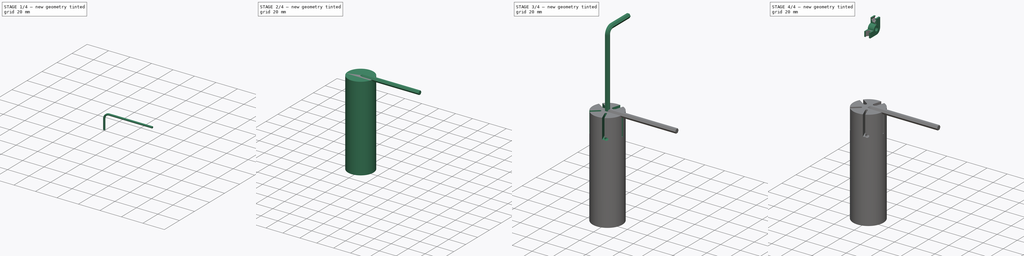
[diagram: build sequence overview — one tinted view per stage of 4, left to right]
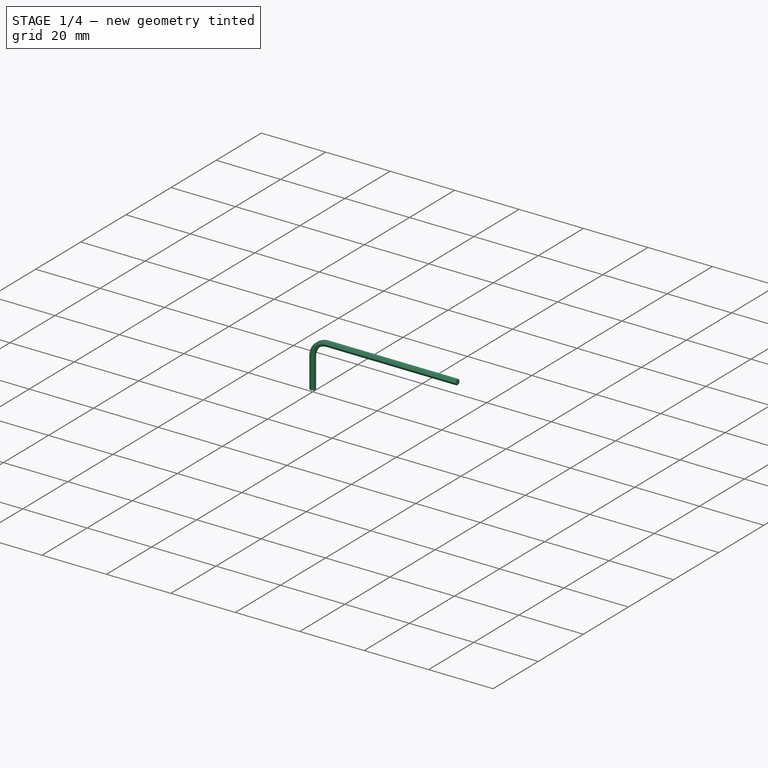
[diagram: stage 1 of 4 — iso view after this stage's code; geometry added in this stage tinted green]
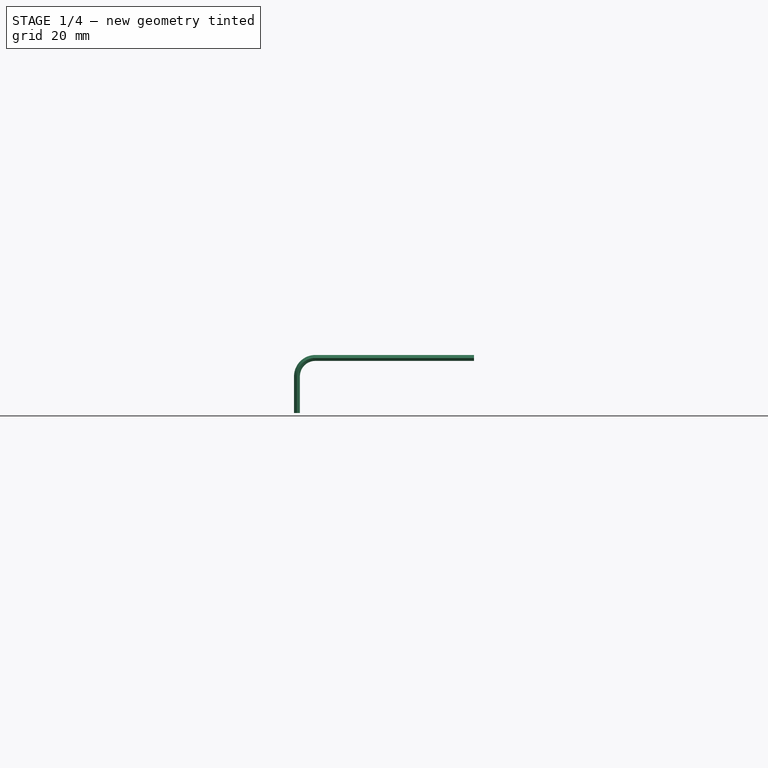
[diagram: stage 1 of 4 — front view after this stage's code; geometry added in this stage tinted green]
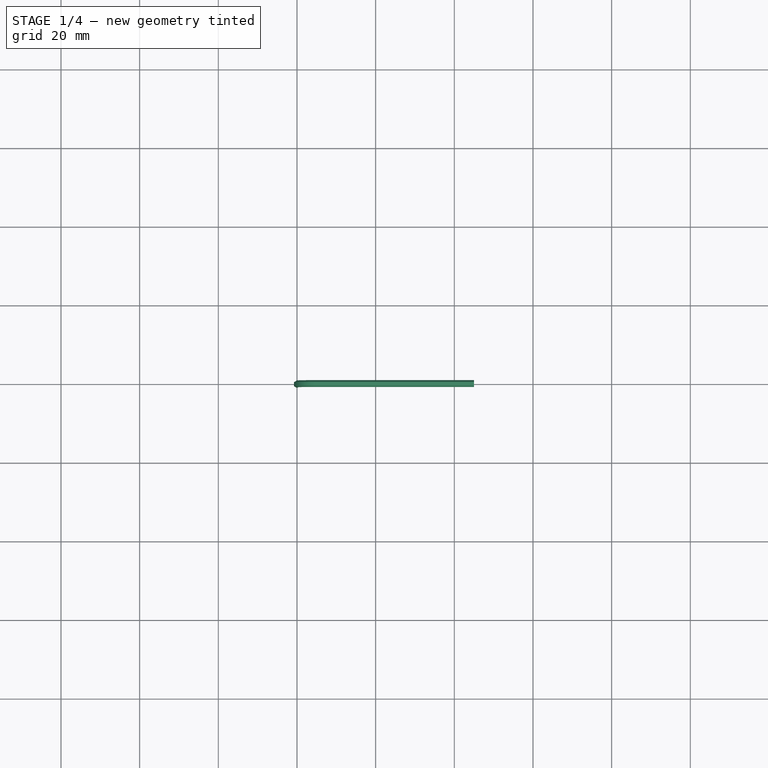
[diagram: stage 1 of 4 — top view after this stage's code; geometry added in this stage tinted green]
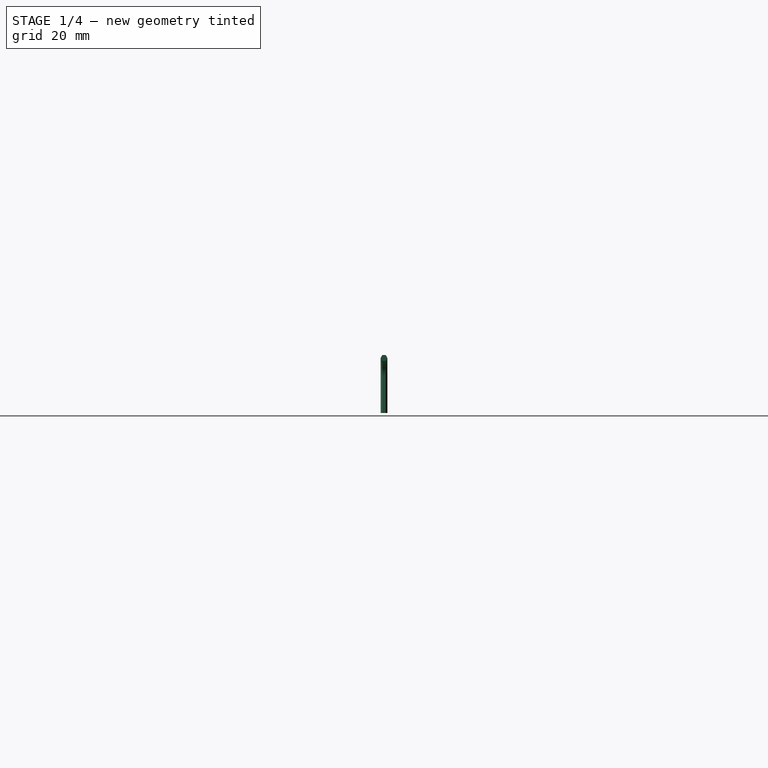
[diagram: stage 1 of 4 — right view after this stage's code; geometry added in this stage tinted green]
FCSTD DOCUMENT  (FreeCAD 1.1R20260108 (Git shallow))
Label: Hex Keys Holder
License: Creative Commons Attribution-NonCommercial-ShareAlike 4.0
LicenseURL: https://creativecommons.org/licenses/by-nc-sa/4.0/
objects: App::Point×9, Sketcher::SketchObject×9, PartDesign::Body×9, PartDesign::SubShapeBinder×5, PartDesign::FeatureBase×3, PartDesign::AdditivePipe×2, PartDesign::Pad×2, Part::DatumPlane×2, PartDesign::Pocket×2, PartDesign::SubtractivePipe×1, Spreadsheet::Sheet×1
note: 59 computed .brp shape members not serialized (recipe doc carries the construction recipe); baked Part::Feature solids carry a one-line shape summary decoded from their .brp

FEATURE [PartDesign::Body] Body  label="Corps"
  AllowCompound = true
  Group = -> [Sketch005,Sketch006,Pad002,Pocket,Sketch007,DatumPlane,Sketch,Pocket001]
  Origin = -> Origin
  Tip = -> Pocket001
FEATURE [PartDesign::Body] Body003  label="Corps001"
  AllowCompound = true
  Origin = -> Origin006
FEATURE [App::Point] Origin007  label="Origine006"
  Role = Origin
FEATURE [Spreadsheet::Sheet] Spreadsheet
  cells = B3='S (Section); C3='L1 (Long length); D3='L2 (Short Length); A4==hiddenref(Body004.Size.String); B4(Section)==.B5; C4(Long_Length)==.C5; D4(Short_Length)==.D5; A5='M1.5; B5=1.5; C5=45; D5=14; A6='M2; B6=2; C6=50; D6=16; A7='M2.5; B7=2.5; C7=50; D7=18; A8='M3; B8=3; C8=63; D8=20; A9='M4; B9=4; C9=70; D9=25
  expr: .cells.Bind.B4.D4 = tuple(.cells; <<B>> + str(hiddenref(Body004.Size) + 5); <<D>> + str(hiddenref(Body004.Size) + 5))
FEATURE [App::Point] Origin009  label="Origine008"
  Role = Origin
FEATURE [Sketcher::SketchObject] Sketch008  label="Path"
  ArcFitTolerance = 1e-06
  AttachmentSupport = -> [Origin008]
  ExternalTypes = [0]
  FullyConstrained = true
  MakeInternals = false
  MapMode = 5
  Placement = pos=(0,0,0) rot=(1,0,0;1.5708rad)
  expr: Constraints[4] = <<Spreadsheet>>.Long_Length
  expr: Constraints[5] = <<Spreadsheet>>.Short_Length
  sketch-geometry (5):
    g0: LineSegment [constr] StartX=0 StartY=0 StartZ=0 EndX=45 EndY=0 EndZ=0
    g1: LineSegment [constr] StartX=0 StartY=0 StartZ=0 EndX=0 EndY=-14 EndZ=0
    g2: ArcOfCircle CenterX=4.66667 CenterY=-4.66667 CenterZ=0 NormalX=0 NormalY=0 NormalZ=1 AngleXU=0 Radius=4.66667 StartAngle=1.5708 EndAngle=3.14159
    g3: LineSegment StartX=4.66667 StartY=0 StartZ=0 EndX=45 EndY=0 EndZ=0
    g4: LineSegment StartX=0 StartY=-4.66667 StartZ=0 EndX=0 EndY=-14 EndZ=0
  constraints (13):
    c: Coincident(g0,g-1)
    c: PointOnObject(g0,g-1)
    c: Coincident(g1,g0)
    c: Vertical(g1)
    c: DistanceX(g0,g0) = 45
    c: Distance(g1,g1) = 14
    c: PointOnObject(g2,g1)
    c: PointOnObject(g2,g0)
    c: Radius(g2) = 4.66667
    c: Coincident(g3,g0)
    c: Coincident(g4,g1)
    c: Tangent(g4,g2) = -1.5708
    c: Tangent(g3,g2) = 1.5708
FEATURE [Part::DatumPlane] DatumPlane001
  AttachmentSupport = -> [Sketch008]
  MapMode = 7
  Placement = pos=(45,0,0) rot=(0.57735,-0.57735,-0.57735;2.0944rad)
FEATURE [Sketcher::SketchObject] Sketch009  label="Section"
  ArcFitTolerance = 1e-06
  AttachmentSupport = -> [DatumPlane001]
  ExternalTypes = [0]
  FullyConstrained = true
  MakeInternals = false
  MapMode = 5
  Placement = pos=(45,0,0) rot=(0.57735,-0.57735,-0.57735;2.0944rad)
  expr: Constraints[19] = <<Spreadsheet>>.Section
  sketch-geometry (7):
    g0: LineSegment StartX=0.433013 StartY=0.75 StartZ=0 EndX=-0.433013 EndY=0.75 EndZ=0
    g1: LineSegment StartX=-0.433013 StartY=0.75 StartZ=0 EndX=-0.866025 EndY=-2.1e-15 EndZ=0
    g2: LineSegment StartX=-0.866025 StartY=-2.1e-15 StartZ=0 EndX=-0.433013 EndY=-0.75 EndZ=0
    g3: LineSegment StartX=-0.433013 StartY=-0.75 StartZ=0 EndX=0.433013 EndY=-0.75 EndZ=0
    g4: LineSegment StartX=0.433013 StartY=-0.75 StartZ=0 EndX=0.866025 EndY=9e-16 EndZ=0
    g5: LineSegment StartX=0.866025 StartY=9e-16 StartZ=0 EndX=0.433013 EndY=0.75 EndZ=0
    g6: Circle [constr] CenterX=0 CenterY=0 CenterZ=0 NormalX=0 NormalY=0 NormalZ=1 AngleXU=0 Radius=0.866025
  constraints (16):
    c: Coincident(g0,g1)
    c: Coincident(g1,g2)
    c: Coincident(g2,g3)
    c: Coincident(g3,g4)
    c: Coincident(g4,g5)
    c: Coincident(g5,g0)
    c: Equal(g0, g1-g5) x5
    c: PointOnObject(g0,g6)
    c: PointOnObject(g1,g6)
    c: PointOnObject(g2,g6)
    c: PointOnObject(g3,g6)
    c: PointOnObject(g4,g6)
    c: PointOnObject(g5,g6)
    c: Coincident(g6,g-1)
    c: Horizontal(g0)
    c: Distance(g3,g0) = 1.5
FEATURE [PartDesign::AdditivePipe] AdditivePipe001
  AuxiliaryCurvilinear = true
  AuxiliarySpineTangent = false
  Binormal = (0,0,0)
  Mode = 0
  Placement = pos=(45,0,0) rot=(0.57735,-0.57735,-0.57735;2.0944rad)
  Profile = -> Sketch009
  Refine = true
  Spine = -> Sketch008
  SpineTangent = false
  Suppressed = false
  Transformation = 0
  Transition = 0
FEATURE [PartDesign::Body] Body006  label="M2"
  AllowCompound = true
  BaseFeature = -> Binder002
  Group = -> [BaseFeature001,Binder002]
  Origin = -> Origin012
  Tip = -> BaseFeature001
FEATURE [PartDesign::FeatureBase] BaseFeature002
  BaseFeature = -> Binder001
  Suppressed = false
FEATURE [PartDesign::Body] Body005  label="M1.5"
  AllowCompound = true
  BaseFeature = -> Binder001
  Group = -> [BaseFeature002,Binder001]
  Origin = -> Origin010
  Tip = -> BaseFeature002
FEATURE [App::Point] Origin017  label="Origine016"
  Role = Origin
FEATURE [PartDesign::SubShapeBinder] Binder004
  BindCopyOnChange = 0
  BindMode = 0
  ClaimChildren = false
  Context = -> Body008 [Binder004.]
  Fuse = false
  MakeFace = true
  OffsetFill = false
  OffsetIntersection = false
  OffsetJoinType = 0
  OffsetOpenResult = false
  PartialLoad = false
  Refine = true
  Relative = true
  Support = -> [Body004]
  _Version = 2
FEATURE [PartDesign::Body] Body008  label="Axis"
  AllowCompound = true
  Group = -> [Binder004]
  Origin = -> Origin016
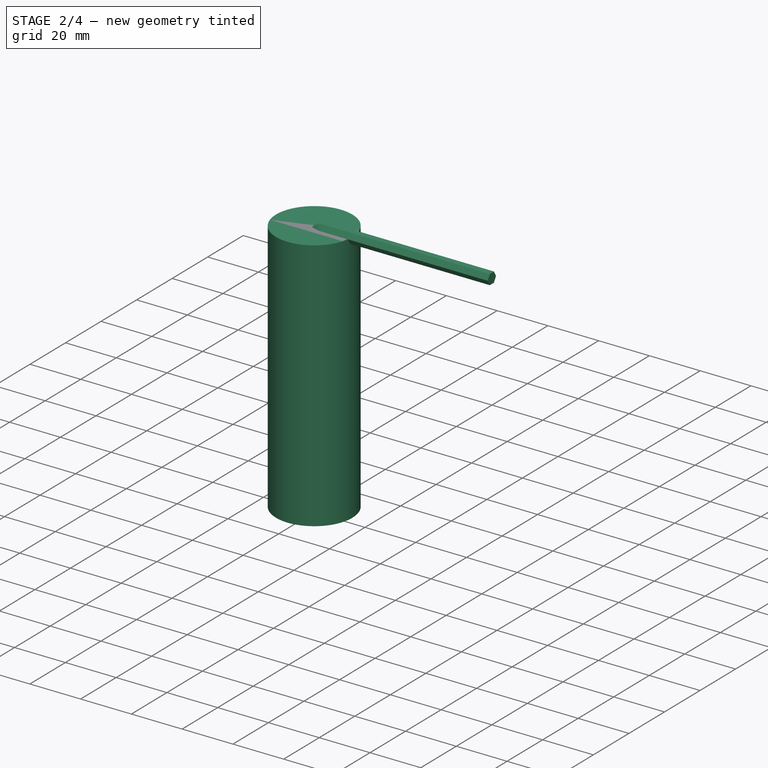
[diagram: stage 2 of 4 — iso view after this stage's code; geometry added in this stage tinted green]
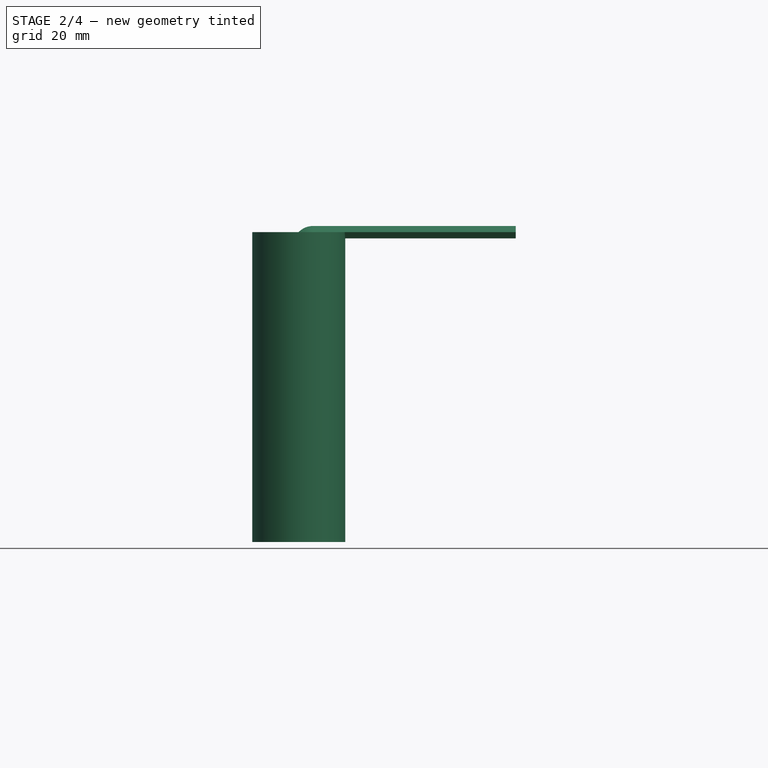
[diagram: stage 2 of 4 — front view after this stage's code; geometry added in this stage tinted green]
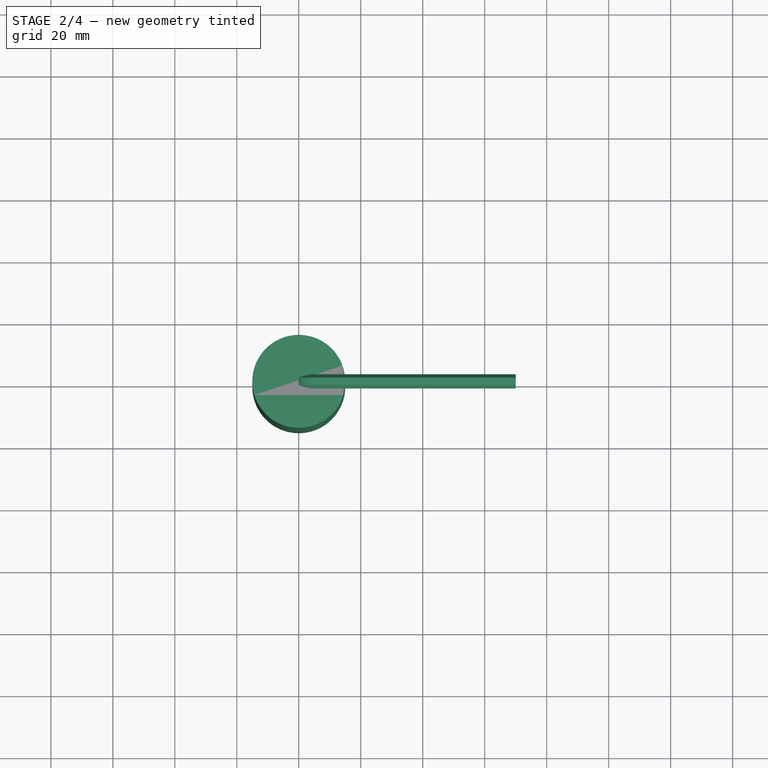
[diagram: stage 2 of 4 — top view after this stage's code; geometry added in this stage tinted green]
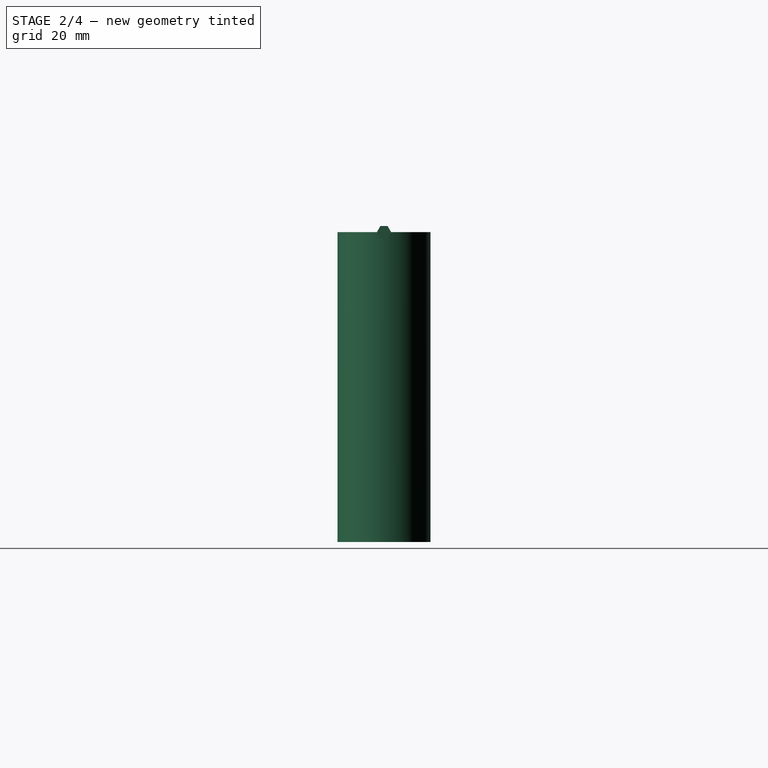
[diagram: stage 2 of 4 — right view after this stage's code; geometry added in this stage tinted green]
FEATURE [PartDesign::Body] Body002  label="4 Key Holder"
  AllowCompound = true
  Group = -> [Binder,Sketch004,Pad001,SubtractivePipe]
  Origin = -> Origin004
  Placement = pos=(0,-5.481,150.37) rot=(1,0,0;3.14159rad)
  Tip = -> SubtractivePipe
FEATURE [Sketcher::SketchObject] Sketch005  label="Master"
  ArcFitTolerance = 1e-06
  AttachmentSupport = -> [Origin]
  ExternalTypes = [0]
  FullyConstrained = true
  MakeInternals = false
  MapMode = 5
  sketch-geometry (64):
    g0: LineSegment [constr] StartX=3.99641 StartY=6.08512 StartZ=0 EndX=3.5584 EndY=8.03657 EndZ=0
    g1: LineSegment [constr] StartX=3.5584 StartY=8.03657 StartZ=0 EndX=1.6494 EndY=8.63297 EndZ=0
    g2: LineSegment [constr] StartX=1.6494 StartY=8.63297 StartZ=0 EndX=0.178394 EndY=7.27792 EndZ=0
    g3: LineSegment [constr] StartX=0.178394 StartY=7.27792 StartZ=0 EndX=0.6164 EndY=5.32648 EndZ=0
    g4: LineSegment [constr] StartX=0.6164 StartY=5.32648 StartZ=0 EndX=2.52541 EndY=4.73008 EndZ=0
    g5: LineSegment [constr] StartX=2.52541 StartY=4.73008 StartZ=0 EndX=3.99641 EndY=6.08512 EndZ=0
    g6: Circle [constr] CenterX=2.0874 CenterY=6.68152 CenterZ=0 NormalX=0 NormalY=0 NormalZ=1 AngleXU=0 Radius=2
    g7: LineSegment [constr] StartX=0 StartY=-9e-16 StartZ=0 EndX=2.0874 EndY=6.68152 EndZ=0
    g8: LineSegment StartX=0.178394 StartY=7.27792 StartZ=0 EndX=0.6164 EndY=5.32648 EndZ=0
    g9: LineSegment StartX=0.6164 StartY=5.32648 StartZ=0 EndX=2.52541 EndY=4.73008 EndZ=0
    g10: LineSegment StartX=2.52541 StartY=4.73008 StartZ=0 EndX=3.99641 EndY=6.08512 EndZ=0
    g11: LineSegment [constr] StartX=-6.13722 StartY=4.87053 StartZ=0 EndX=-6.95292 EndY=3.61171 EndZ=0
    g12: LineSegment [constr] StartX=-6.95292 StartY=3.61171 StartZ=0 EndX=-6.2706 EndY=2.27588 EndZ=0
    g13: LineSegment StartX=-6.2706 StartY=2.27588 StartZ=0 EndX=-4.77257 EndY=2.19887 EndZ=0
    g14: LineSegment StartX=-4.77257 StartY=2.19887 StartZ=0 EndX=-3.95687 EndY=3.4577 EndZ=0
    g15: LineSegment StartX=-3.95687 StartY=3.4577 StartZ=0 EndX=-4.63919 EndY=4.79352 EndZ=0
    g16: LineSegment [constr] StartX=-4.63919 StartY=4.79352 StartZ=0 EndX=-6.13722 EndY=4.87053 EndZ=0
    g17: Circle [constr] CenterX=-5.45489 CenterY=3.5347 CenterZ=0 NormalX=0 NormalY=0 NormalZ=1 AngleXU=0 Radius=1.5
    g18: LineSegment [constr] StartX=-5.56837 StartY=-3.10132 StartZ=0 EndX=-5.98716 EndY=-4.27908 EndZ=0
    g19: LineSegment [constr] StartX=-5.98716 StartY=-4.27908 StartZ=0 EndX=-5.17659 EndY=-5.23064 EndZ=0
    g20: LineSegment [constr] StartX=-5.17659 StartY=-5.23064 StartZ=0 EndX=-3.94722 EndY=-5.00444 EndZ=0
    g21: LineSegment StartX=-3.94722 StartY=-5.00444 StartZ=0 EndX=-3.52844 EndY=-3.82668 EndZ=0
    g22: LineSegment StartX=-3.52844 StartY=-3.82668 StartZ=0 EndX=-4.33901 EndY=-2.87512 EndZ=0
    g23: LineSegment StartX=-4.33901 StartY=-2.87512 StartZ=0 EndX=-5.56837 EndY=-3.10132 EndZ=0
    g24: Circle [constr] CenterX=-4.7578 CenterY=-4.05288 CenterZ=0 NormalX=0 NormalY=0 NormalZ=1 AngleXU=0 Radius=1.25
    g25: LineSegment [constr] StartX=1.26448 StartY=-5.94988 StartZ=0 EndX=2.04665 EndY=-6.57294 EndZ=0
    g26: LineSegment [constr] StartX=2.04665 StartY=-6.57294 StartZ=0 EndX=2.97732 EndY=-6.20708 EndZ=0
    g27: LineSegment [constr] StartX=2.97732 StartY=-6.20708 StartZ=0 EndX=3.12582 EndY=-5.21817 EndZ=0
    g28: LineSegment StartX=3.12582 StartY=-5.21817 StartZ=0 EndX=2.34364 EndY=-4.59511 EndZ=0
    g29: LineSegment StartX=2.34364 StartY=-4.59511 StartZ=0 EndX=1.41297 EndY=-4.96097 EndZ=0
    g30: LineSegment StartX=1.41297 StartY=-4.96097 StartZ=0 EndX=1.26448 EndY=-5.94988 EndZ=0
    g31: Circle [constr] CenterX=2.19515 CenterY=-5.58402 CenterZ=0 NormalX=0 NormalY=0 NormalZ=1 AngleXU=0 Radius=1
    g32: LineSegment [constr] StartX=-5.45489 StartY=3.5347 StartZ=0 EndX=0 EndY=-9e-16 EndZ=0
    g33: LineSegment [constr] StartX=-4.7578 StartY=-4.05288 StartZ=0 EndX=0 EndY=-9e-16 EndZ=0
    g34: LineSegment [constr] StartX=2.19515 StartY=-5.58402 StartZ=0 EndX=0 EndY=-9e-16 EndZ=0
    g35: LineSegment StartX=5.10048 StartY=0.375 StartZ=0 EndX=5.10048 EndY=-0.375 EndZ=0
    g36: LineSegment StartX=5.10048 StartY=-0.375 StartZ=0 EndX=5.75 EndY=-0.75 EndZ=0
    g37: LineSegment [constr] StartX=5.75 StartY=-0.75 StartZ=0 EndX=6.39952 EndY=-0.375 EndZ=0
    g38: LineSegment [constr] StartX=6.39952 StartY=-0.375 StartZ=0 EndX=6.39952 EndY=0.375 EndZ=0
    g39: LineSegment [constr] StartX=6.39952 StartY=0.375 StartZ=0 EndX=5.75 EndY=0.75 EndZ=0
    g40: LineSegment StartX=5.75 StartY=0.75 StartZ=0 EndX=5.10048 EndY=0.375 EndZ=0
    g41: Circle [constr] CenterX=5.75 CenterY=-9e-16 CenterZ=0 NormalX=0 NormalY=0 NormalZ=1 AngleXU=0 Radius=0.75
    g42: LineSegment [constr] StartX=0 StartY=-9e-16 StartZ=0 EndX=5.75 EndY=-9e-16 EndZ=0
    g43: ArcOfCircle CenterX=0 CenterY=-9e-16 CenterZ=0 NormalX=0 NormalY=0 NormalZ=1 AngleXU=0 Radius=15 StartAngle=2.46647 EndAngle=2.6668
    g44: Circle [constr] CenterX=0 CenterY=-9e-16 CenterZ=0 NormalX=0 NormalY=0 NormalZ=1 AngleXU=0 Radius=5
    g45: LineSegment [constr] StartX=3.04877 StartY=4.92774 StartZ=0 EndX=5.38949 EndY=0.65767 EndZ=0
    g46: LineSegment [constr] StartX=5.34723 StartY=-0.632675 StartZ=0 EndX=2.73217 EndY=-4.74046 EndZ=0
    g47: LineSegment [constr] StartX=1.21855 StartY=-5.36896 StartZ=0 EndX=-3.53705 EndY=-4.32171 EndZ=0
    g48: LineSegment [constr] StartX=-4.87216 StartY=-2.80812 StartZ=0 EndX=-5.31766 EndY=2.04099 EndZ=0
    g49: LineSegment [constr] StartX=-4.25246 StartY=4.03639 StartZ=0 EndX=0.241612 EndY=5.91142 EndZ=0
    g50: LineSegment StartX=0.178394 StartY=7.27792 StartZ=0 EndX=2.52406 EndY=14.7861 EndZ=0
    g51: LineSegment StartX=3.99641 StartY=6.08512 StartZ=0 EndX=6.34207 EndY=13.5933 EndZ=0
    g52: LineSegment StartX=-4.63919 StartY=4.79352 StartZ=0 EndX=-11.7094 EndY=9.37494 EndZ=0
    g53: LineSegment StartX=-6.2706 StartY=2.27588 StartZ=0 EndX=-13.3408 EndY=6.8573 EndZ=0
    g54: LineSegment StartX=-5.56837 StartY=-3.10132 StartZ=0 EndX=-12.1896 EndY=-8.74152 EndZ=0
    g55: LineSegment StartX=-3.94722 StartY=-5.00444 StartZ=0 EndX=-10.5684 EndY=-10.6446 EndZ=0
    g56: LineSegment StartX=1.26448 StartY=-5.94988 StartZ=0 EndX=4.54499 EndY=-14.2949 EndZ=0
    g57: LineSegment StartX=3.12582 StartY=-5.21817 StartZ=0 EndX=6.40633 EndY=-13.5631 EndZ=0
    g58: LineSegment StartX=5.75 StartY=-0.75 StartZ=0 EndX=14.9812 EndY=-0.75 EndZ=0
    g59: LineSegment StartX=5.75 StartY=0.75 StartZ=0 EndX=14.9812 EndY=0.75 EndZ=0
    g60: ArcOfCircle CenterX=0 CenterY=-9e-16 CenterZ=0 NormalX=0 NormalY=0 NormalZ=1 AngleXU=0 Radius=15 StartAngle=1.13426 EndAngle=1.40172
    g61: ArcOfCircle CenterX=0 CenterY=-9e-16 CenterZ=0 NormalX=0 NormalY=0 NormalZ=1 AngleXU=0 Radius=15 StartAngle=6.23316 EndAngle=6.33321
    g62: ArcOfCircle CenterX=0 CenterY=-9e-16 CenterZ=0 NormalX=0 NormalY=0 NormalZ=1 AngleXU=0 Radius=15 StartAngle=5.02023 EndAngle=5.15366
    g63: ArcOfCircle CenterX=0 CenterY=-9e-16 CenterZ=0 NormalX=0 NormalY=0 NormalZ=1 AngleXU=0 Radius=15 StartAngle=3.76372 EndAngle=3.93058
  constraints (163):
    c: Coincident(g0,g1)
    c: Coincident(g1,g2)
    c: Coincident(g2,g3)
    c: Coincident(g3,g4)
    c: Coincident(g4,g5)
    c: Coincident(g5,g0)
    c: Equal(g0, g1-g5) x5
    c: PointOnObject(g0,g6)
    c: PointOnObject(g1,g6)
    c: PointOnObject(g2,g6)
    c: PointOnObject(g3,g6)
    c: PointOnObject(g4,g6)
    c: PointOnObject(g5,g6)
    c: Coincident(g7,g-1)
    c: Coincident(g7,g6)
    c: Perpendicular(g7,g4)
    c: Diameter(g6) = 4
    c: Coincident(g2,g8)
    c: Coincident(g8,g3)
    c: Coincident(g8,g9)
    c: Coincident(g9,g4)
    c: Coincident(g9,g10)
    c: Coincident(g10,g0)
    c: Coincident(g11,g12)
    c: Coincident(g12,g13)
    c: Coincident(g13,g14)
    c: Coincident(g14,g15)
    c: Coincident(g15,g16)
    c: Coincident(g16,g11)
    c: Equal(g11, g12-g16) x5
    c: PointOnObject(g11,g17)
    c: PointOnObject(g12,g17)
    c: PointOnObject(g13,g17)
    c: PointOnObject(g14,g17)
    c: PointOnObject(g15,g17)
    c: PointOnObject(g16,g17)
    c: Coincident(g18,g19)
    c: Coincident(g19,g20)
    c: Coincident(g20,g21)
    c: Coincident(g21,g22)
    c: Coincident(g22,g23)
    c: Coincident(g23,g18)
    c: Equal(g18, g19-g23) x5
    c: PointOnObject(g18,g24)
    c: PointOnObject(g19,g24)
    c: PointOnObject(g20,g24)
    c: PointOnObject(g21,g24)
    c: PointOnObject(g22,g24)
    c: PointOnObject(g23,g24)
    c: Coincident(g25,g26)
    c: Coincident(g26,g27)
    c: Coincident(g27,g28)
    c: Coincident(g28,g29)
    c: Coincident(g29,g30)
    c: Coincident(g30,g25)
    c: Equal(g25, g26-g30) x5
    c: PointOnObject(g25,g31)
    c: PointOnObject(g26,g31)
    c: PointOnObject(g27,g31)
    c: PointOnObject(g28,g31)
    c: PointOnObject(g29,g31)
    c: Diameter(g17) = 3
    c: Diameter(g24) = 2.5
    c: Diameter(g31) = 2
    c: Coincident(g32,g17)
    c: Coincident(g32,g7)
    c: Coincident(g33,g24)
    c: Coincident(g33,g7)
    c: Coincident(g34,g31)
    c: Coincident(g34,g7)
    c: Perpendicular(g32,g14)
    c: Perpendicular(g33,g22)
    c: Perpendicular(g34,g29)
    c: Coincident(g35,g36)
    c: Coincident(g36,g37)
    c: Coincident(g37,g38)
    c: Coincident(g38,g39)
    c: Coincident(g39,g40)
    c: Coincident(g40,g35)
    c: Equal(g35, g36-g40) x5
    c: PointOnObject(g35,g41)
    c: PointOnObject(g36,g41)
    c: PointOnObject(g37,g41)
    c: PointOnObject(g38,g41)
    c: PointOnObject(g39,g41)
    c: Diameter(g41) = 1.5
    c: Coincident(g42,g7)
    c: Coincident(g42,g41)
    c: Perpendicular(g35,g42)
    c: PointOnObject(g25,g31)
    c: PointOnObject(g35,g41)
    c: Coincident(g43,g7)
    c: Diameter(g44) = 10
    c: Coincident(g44,g7)
    c: Tangent(g41,g44)
    c: Tangent(g31,g44)
    c: Tangent(g24,g44)
    c: Tangent(g17,g44)
    c: Tangent(g6,g44)
    c: Horizontal(g42)
    c: PointOnObject(g45,g41)
    c: PointOnObject(g46,g31)
    c: PointOnObject(g47,g31)
    c: PointOnObject(g47,g24)
    c: PointOnObject(g48,g24)
    c: PointOnObject(g48,g17)
    c: PointOnObject(g49,g15)
    c: PointOnObject(g49,g6)
    c: PointOnObject(g6,g49)
    c: PointOnObject(g17,g49)
    c: PointOnObject(g46,g41)
    c: PointOnObject(g41,g46)
    c: PointOnObject(g41,g45)
    c: PointOnObject(g45,g6)
    c: PointOnObject(g6,g45)
    c: Equal(g45,g49)
    c: Equal(g49,g48)
    c: Equal(g48,g47)
    c: PointOnObject(g17,g48)
    c: PointOnObject(g24,g48)
    c: PointOnObject(g24,g47)
    c: PointOnObject(g31,g47)
    c: PointOnObject(g31,g46)
    c: Equal(g46,g45)
    c: Coincident(g50,g2)
    c: Tangent(g50,g6)
    c: Coincident(g51,g0)
    c: Parallel(g51,g7)
    c: Coincident(g52,g15)
    c: Coincident(g53,g12)
    c: Coincident(g54,g18)
    c: Coincident(g55,g20)
    c: Tangent(g55,g24)
    c: Coincident(g56,g25)
    c: Tangent(g56,g31)
    c: Coincident(g57,g27)
    c: Coincident(g58,g36)
    c: Coincident(g59,g39)
    c: Parallel(g57,g56)
    c: Parallel(g55,g54)
    c: Parallel(g32,g53)
    c: Parallel(g53,g52)
    c: Parallel(g58,g59)
    c: Parallel(g59,g42)
    c: Coincident(g50,g60)
    c: Coincident(g52,g43)
    c: Coincident(g51,g60)
    c: Coincident(g59,g61)
    c: Coincident(g43,g60)
    c: Coincident(g57,g62)
    c: Coincident(g58,g61)
    c: Coincident(g43,g61)
    c: Coincident(g55,g63)
    c: Coincident(g56,g62)
    c: Coincident(g43,g62)
    c: Diameter(g43) = 30
    c: Coincident(g53,g43)
    c: Coincident(g54,g63)
    c: Coincident(g43,g63)
    c: PointOnObject(g59,g60)
    c: PointOnObject(g57,g60)
    c: PointOnObject(g55,g60)
    c: PointOnObject(g43,g60)
FEATURE [Sketcher::SketchObject] Sketch007
  ArcFitTolerance = 1e-06
  AttachmentSupport = -> [Origin]
  ExternalGeometry = -> [Sketch005]
  ExternalTypes = [0,0,0,0]
  FullyConstrained = true
  MakeInternals = false
  MapMode = 5
  sketch-geometry (7):
    g0: Circle [constr] CenterX=5.75 CenterY=0 CenterZ=0 NormalX=0 NormalY=0 NormalZ=1 AngleXU=0 Radius=0.75
    g1: Circle [constr] CenterX=7.25 CenterY=0 CenterZ=0 NormalX=0 NormalY=0 NormalZ=1 AngleXU=0 Radius=0.75
    g2: Circle [constr] CenterX=8.75 CenterY=0 CenterZ=0 NormalX=0 NormalY=0 NormalZ=1 AngleXU=0 Radius=0.75
    g3: Circle [constr] CenterX=10.25 CenterY=0 CenterZ=0 NormalX=0 NormalY=0 NormalZ=1 AngleXU=0 Radius=0.75
    g4: Circle [constr] CenterX=11.75 CenterY=0 CenterZ=0 NormalX=0 NormalY=0 NormalZ=1 AngleXU=0 Radius=0.75
    g5: LineSegment StartX=9.5 StartY=0.75 StartZ=0 EndX=9.5 EndY=-0.75 EndZ=0
    g6: LineSegment StartX=12.5 StartY=0.75 StartZ=0 EndX=12.5 EndY=-0.75 EndZ=0
  constraints (23):
    c: PointOnObject(g0,g-1)
    c: PointOnObject(g-3,g0)
    c: PointOnObject(g-3,g0)
    c: PointOnObject(g1,g-1)
    c: Tangent(g1,g0)
    c: PointOnObject(g2,g-1)
    c: Tangent(g2,g1)
    c: PointOnObject(g3,g-1)
    c: Tangent(g3,g2)
    c: PointOnObject(g4,g-1)
    c: Tangent(g4,g3)
    c: Equal(g0,g1)
    c: Equal(g1,g2)
    c: Equal(g2,g3)
    c: Equal(g3,g4)
    c: Vertical(g5)
    c: Tangent(g5,g3)
    c: Horizontal(g-4,g5)
    c: Vertical(g6)
    c: Horizontal(g6,g5)
    c: Horizontal(g6,g5)
    c: Horizontal(g5,g-3)
    c: Tangent(g4,g6)
FEATURE [Part::DatumPlane] DatumPlane
  AttachmentSupport = -> [Sketch007]
  MapMode = 7
  Placement = pos=(9.5,0.75,0) rot=(0,0.707107,0.707107;3.14159rad)
FEATURE [Sketcher::SketchObject] Sketch006
  ArcFitTolerance = 1e-06
  AttachmentSupport = -> [Sketch005]
  ExternalGeometry = -> [Sketch005]
  ExternalTypes = [0]
  FullyConstrained = true
  MakeInternals = false
  MapMode = 2
  sketch-geometry (1):
    g0: Circle CenterX=0 CenterY=0 CenterZ=0 NormalX=0 NormalY=0 NormalZ=1 AngleXU=0 Radius=15
  constraints (2):
    c: Coincident(g0,g-3)
    c: PointOnObject(g-3,g0)
FEATURE [PartDesign::Pad] Pad002
  Direction = (0,0,1)
  Length = 100
  Length2 = 10
  Profile = -> Sketch006
  ReferenceAxis = -> Sketch006 [N_Axis]
  Refine = true
  Reversed = true
  SideType = 0
  Suppressed = false
  Type = 0
  Type2 = 0
FEATURE [PartDesign::Body] Body004  label="Master Key"
  AllowCompound = true
  Group = -> [Sketch008,DatumPlane001,Sketch009,AdditivePipe001]
  Origin = -> Origin008
  Size = 0
  Tip = -> AdditivePipe001
  expr: .Size.Enum = Spreadsheet.cells[<<A5:|>>]
FEATURE [App::Point] Origin011  label="Origine010"
  Role = Origin
FEATURE [PartDesign::SubShapeBinder] Binder001
  BindCopyOnChange = 1
  BindMode = 0
  ClaimChildren = false
  Context = -> Body005 [Binder001.]
  Fuse = false
  MakeFace = true
  OffsetFill = false
  OffsetIntersection = false
  OffsetJoinType = 0
  OffsetOpenResult = false
  PartialLoad = false
  Refine = true
  Relative = true
  Size = 0
  Support = -> [Body004]
  _Version = 2
FEATURE [App::Point] Origin013  label="Origine012"
  Role = Origin
FEATURE [PartDesign::SubShapeBinder] Binder002
  BindCopyOnChange = 2
  BindMode = 0
  ClaimChildren = false
  Context = -> Body006 [Binder002.]
  Fuse = false
  MakeFace = true
  OffsetFill = false
  OffsetIntersection = false
  OffsetJoinType = 0
  OffsetOpenResult = false
  PartialLoad = false
  Refine = true
  Relative = true
  Size = 1
  Support = -> [Body004]
  _Version = 2
FEATURE [App::Point] Origin015  label="Origine014"
  Role = Origin
FEATURE [PartDesign::SubShapeBinder] Binder003
  BindCopyOnChange = 2
  BindMode = 0
  ClaimChildren = false
  Context = -> Body007 [Binder003.]
  Fuse = false
  MakeFace = true
  OffsetFill = false
  OffsetIntersection = false
  OffsetJoinType = 0
  OffsetOpenResult = false
  PartialLoad = false
  Refine = true
  Relative = true
  Size = 4
  Support = -> [Body004]
  _Version = 2
FEATURE [PartDesign::FeatureBase] BaseFeature
  BaseFeature = -> Binder003
  Suppressed = false
FEATURE [PartDesign::Body] Body007  label="M4"
  AllowCompound = true
  BaseFeature = -> Binder003
  Group = -> [BaseFeature,Binder003]
  Origin = -> Origin014
  Tip = -> BaseFeature
FEATURE [PartDesign::FeatureBase] BaseFeature001
  BaseFeature = -> Binder002
  Suppressed = false
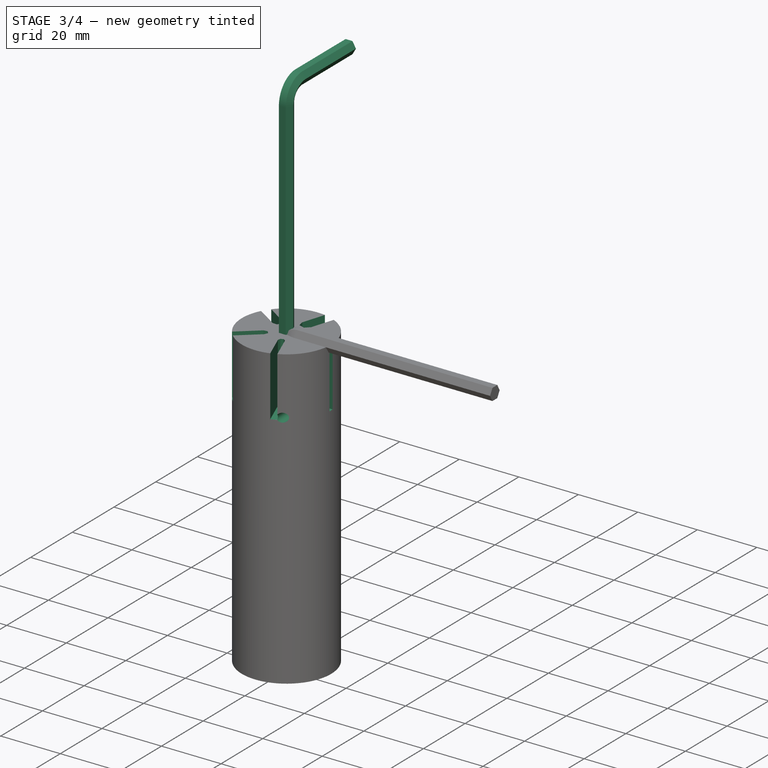
[diagram: stage 3 of 4 — iso view after this stage's code; geometry added in this stage tinted green]
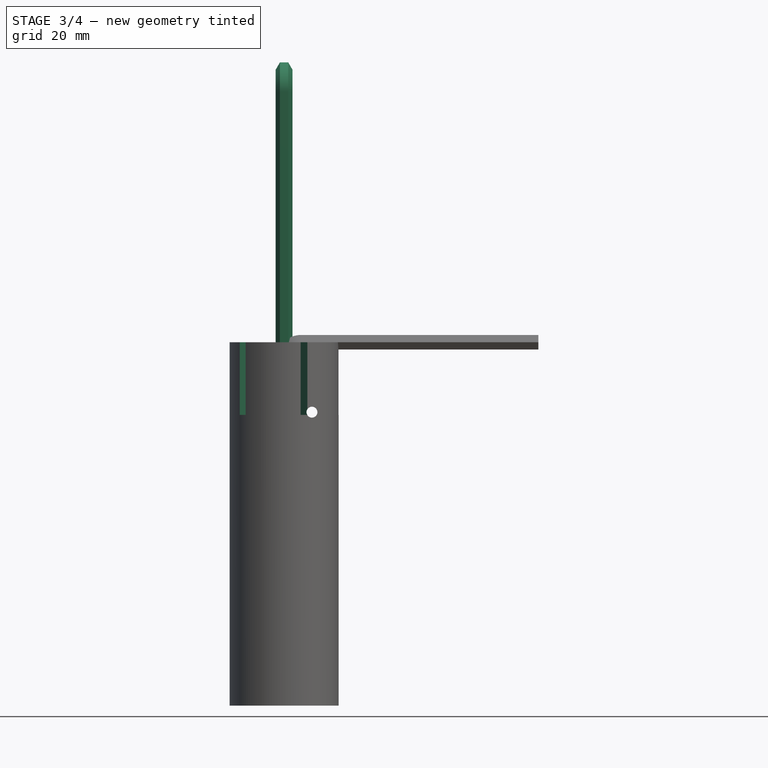
[diagram: stage 3 of 4 — front view after this stage's code; geometry added in this stage tinted green]
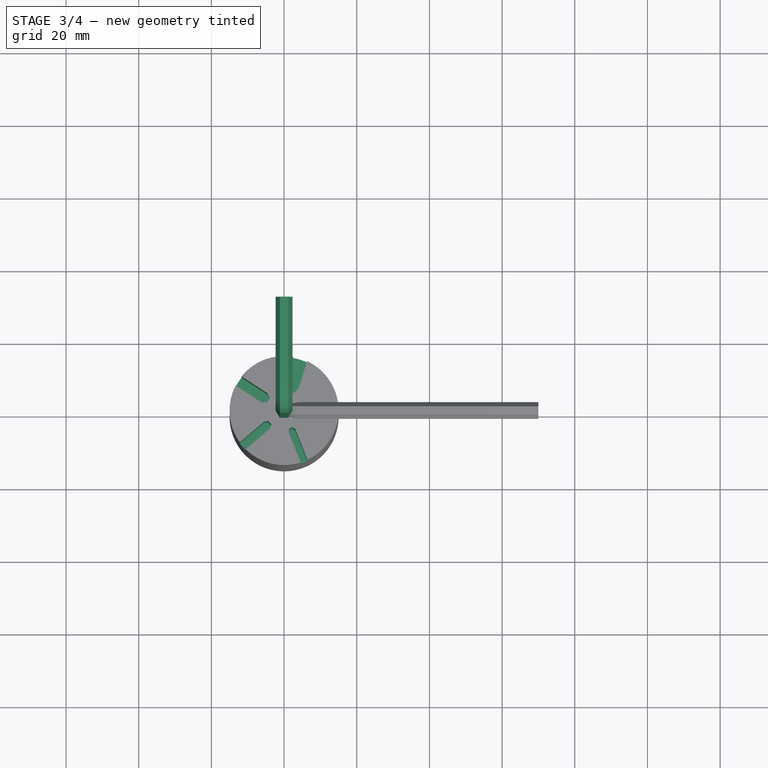
[diagram: stage 3 of 4 — top view after this stage's code; geometry added in this stage tinted green]
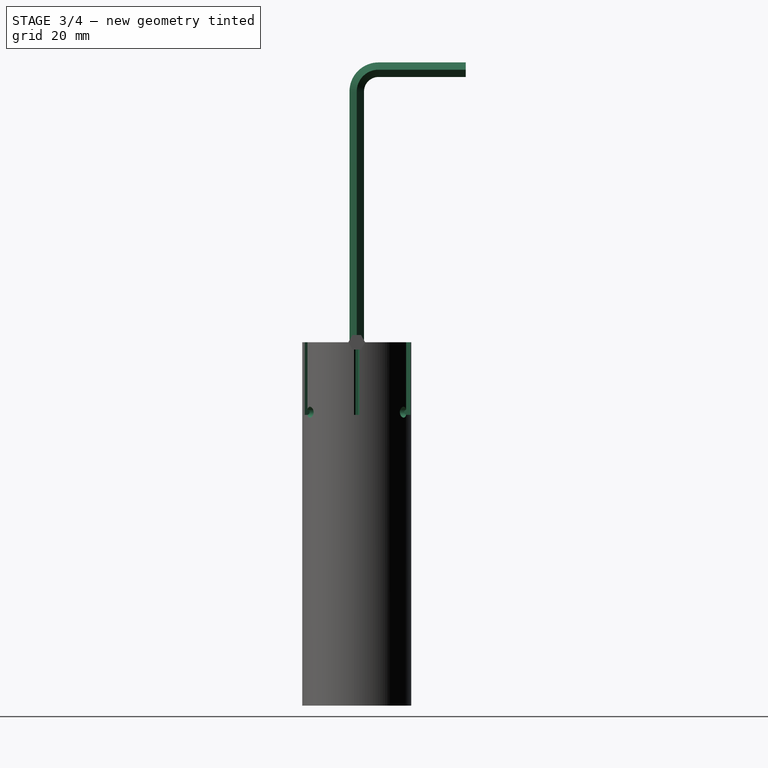
[diagram: stage 3 of 4 — right view after this stage's code; geometry added in this stage tinted green]
FEATURE [App::Point] Origin001  label="Origine"
  Role = Origin
FEATURE [App::Point] Origin003  label="Origine002"
  Role = Origin
FEATURE [Sketcher::SketchObject] Sketch002
  ArcFitTolerance = 1e-06
  AttachmentSupport = -> [Origin002]
  ExternalTypes = [0]
  FullyConstrained = true
  MakeInternals = false
  MapMode = 5
  sketch-geometry (7):
    g0: LineSegment StartX=-2.3094 StartY=0 StartZ=0 EndX=-1.1547 EndY=-2 EndZ=0
    g1: LineSegment StartX=-1.1547 StartY=-2 StartZ=0 EndX=1.1547 EndY=-2 EndZ=0
    g2: LineSegment StartX=1.1547 StartY=-2 StartZ=0 EndX=2.3094 EndY=0 EndZ=0
    g3: LineSegment StartX=2.3094 StartY=0 StartZ=0 EndX=1.1547 EndY=2 EndZ=0
    g4: LineSegment StartX=1.1547 StartY=2 StartZ=0 EndX=-1.1547 EndY=2 EndZ=0
    g5: LineSegment StartX=-1.1547 StartY=2 StartZ=0 EndX=-2.3094 EndY=0 EndZ=0
    g6: Circle [constr] CenterX=0 CenterY=0 CenterZ=0 NormalX=0 NormalY=0 NormalZ=1 AngleXU=0 Radius=2.3094
  constraints (16):
    c: Coincident(g0,g1)
    c: Coincident(g1,g2)
    c: Coincident(g2,g3)
    c: Coincident(g3,g4)
    c: Coincident(g4,g5)
    c: Coincident(g5,g0)
    c: Equal(g0, g1-g5) x5
    c: PointOnObject(g0,g6)
    c: PointOnObject(g1,g6)
    c: PointOnObject(g2,g6)
    c: PointOnObject(g3,g6)
    c: PointOnObject(g4,g6)
    c: PointOnObject(g5,g6)
    c: Coincident(g6,g-1)
    c: PointOnObject(g5,g-1)
    c: Distance(g1,g3) = 4
FEATURE [Sketcher::SketchObject] Sketch003
  ArcFitTolerance = 1e-06
  AttachmentSupport = -> [Origin002]
  ExternalTypes = [0]
  FullyConstrained = true
  MakeInternals = false
  MapMode = 5
  Placement = pos=(0,0,0) rot=(0.57735,0.57735,0.57735;2.0944rad)
  sketch-geometry (3):
    g0: LineSegment StartX=0 StartY=0 StartZ=0 EndX=0 EndY=69 EndZ=0
    g1: ArcOfCircle CenterX=6 CenterY=69 CenterZ=0 NormalX=0 NormalY=0 NormalZ=1 AngleXU=0 Radius=6 StartAngle=1.5708 EndAngle=3.14159
    g2: LineSegment StartX=6 StartY=75 StartZ=0 EndX=30 EndY=75 EndZ=0
  constraints (8):
    c: Coincident(g-1,g0)
    c: PointOnObject(g0,g-2)
    c: Tangent(g0,g1) = 1.5708
    c: Tangent(g1,g2) = 1.5708
    c: DistanceY(g-1,g2) = 75
    c: Horizontal(g2)
    c: Distance(g2,g-2) = 30
    c: Radius(g1) = 6
FEATURE [PartDesign::AdditivePipe] AdditivePipe
  AuxiliaryCurvilinear = true
  AuxiliarySpineTangent = false
  Binormal = (0,0,0)
  Mode = 0
  Profile = -> Sketch002
  Refine = true
  Spine = -> Sketch003
  SpineTangent = false
  Suppressed = false
  Transformation = 0
  Transition = 0
FEATURE [PartDesign::Pocket] Pocket
  BaseFeature = -> Pad002
  Direction = (0,0,-1)
  Length = 20
  Length2 = 5
  Profile = -> Sketch005
  ReferenceAxis = -> Sketch005 [N_Axis]
  Refine = true
  SideType = 0
  Suppressed = false
  Type = 0
  Type2 = 0
FEATURE [Sketcher::SketchObject] Sketch
  ArcFitTolerance = 1e-06
  AttachmentSupport = -> [DatumPlane]
  ExternalGeometry = -> [Sketch007,Pocket]
  ExternalTypes = [0,0,0,0]
  FullyConstrained = false
  MakeInternals = false
  MapMode = 5
  Placement = pos=(9.5,0.75,0) rot=(0,0.707107,0.707107;3.14159rad)
  sketch-geometry (11):
    g0: Circle [constr] CenterX=-1.5 CenterY=0 CenterZ=0 NormalX=0 NormalY=0 NormalZ=1 AngleXU=0 Radius=1.5
    g1: LineSegment [constr] StartX=1.82917 StartY=-20 StartZ=0 EndX=2.47869 EndY=-19.625 EndZ=0
    g2: LineSegment [constr] StartX=2.47869 StartY=-19.625 StartZ=0 EndX=2.47869 EndY=-18.875 EndZ=0
    g3: LineSegment [constr] StartX=2.47869 StartY=-18.875 StartZ=0 EndX=1.82917 EndY=-18.5 EndZ=0
    g4: LineSegment [constr] StartX=1.82917 StartY=-18.5 StartZ=0 EndX=1.17965 EndY=-18.875 EndZ=0
    g5: LineSegment [constr] StartX=1.17965 StartY=-18.875 StartZ=0 EndX=1.17965 EndY=-19.625 EndZ=0
    g6: LineSegment [constr] StartX=1.17965 StartY=-19.625 StartZ=0 EndX=1.82917 EndY=-20 EndZ=0
    g7: Circle [constr] CenterX=1.82917 CenterY=-19.25 CenterZ=0 NormalX=0 NormalY=0 NormalZ=1 AngleXU=0 Radius=0.75
    g8: LineSegment [constr] StartX=3.75 StartY=-20 StartZ=0 EndX=4.39952 EndY=-20 EndZ=0
    g9: LineSegment [constr] StartX=1.82917 StartY=-20 StartZ=0 EndX=2.47869 EndY=-20 EndZ=0
    g10: Circle CenterX=1.82917 CenterY=-19.25 CenterZ=0 NormalX=0 NormalY=0 NormalZ=1 AngleXU=0 Radius=1.5
  constraints (26):
    c: PointOnObject(g0,g-1)
    c: PointOnObject(g-3,g0)
    c: PointOnObject(g-4,g0)
    c: Coincident(g1,g2)
    c: Coincident(g2,g3)
    c: Coincident(g3,g4)
    c: Coincident(g4,g5)
    c: Coincident(g5,g6)
    c: Coincident(g6,g1)
    c: Equal(g1, g2-g6) x5
    c: PointOnObject(g1,g7)
    c: PointOnObject(g2,g7)
    c: PointOnObject(g3,g7)
    c: PointOnObject(g4,g7)
    c: PointOnObject(g5,g7)
    c: PointOnObject(g6,g7)
    c: PointOnObject(g6,g-5)
    c: Vertical(g2)
    c: Coincident(g8,g-5)
    c: Coincident(g8,g-6)
    c: Coincident(g9,g1)
    c: Vertical(g1,g9)
    c: Equal(g9,g8)
    c: Horizontal(g9)
    c: Coincident(g10,g7)
    c: Equal(g10,g0)
FEATURE [PartDesign::Pocket] Pocket001
  BaseFeature = -> Pocket
  Direction = (0,-1,2e-16)
  Length = 5
  Length2 = 5
  Profile = -> Sketch
  ReferenceAxis = -> Sketch [N_Axis]
  Refine = true
  SideType = 2
  Suppressed = false
  Type = 1
  Type2 = 0
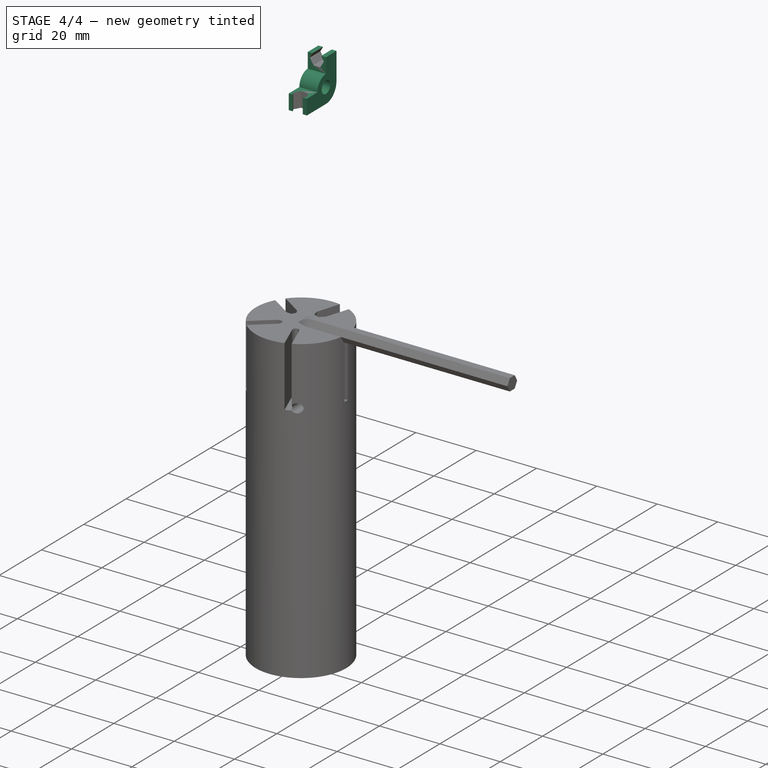
[diagram: stage 4 of 4 — iso view after this stage's code; geometry added in this stage tinted green]
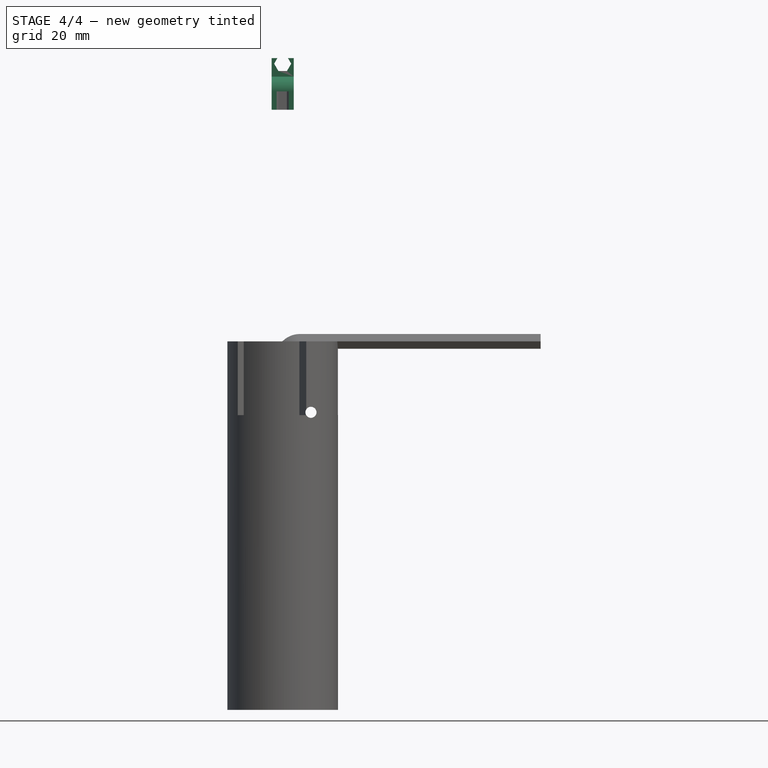
[diagram: stage 4 of 4 — front view after this stage's code; geometry added in this stage tinted green]
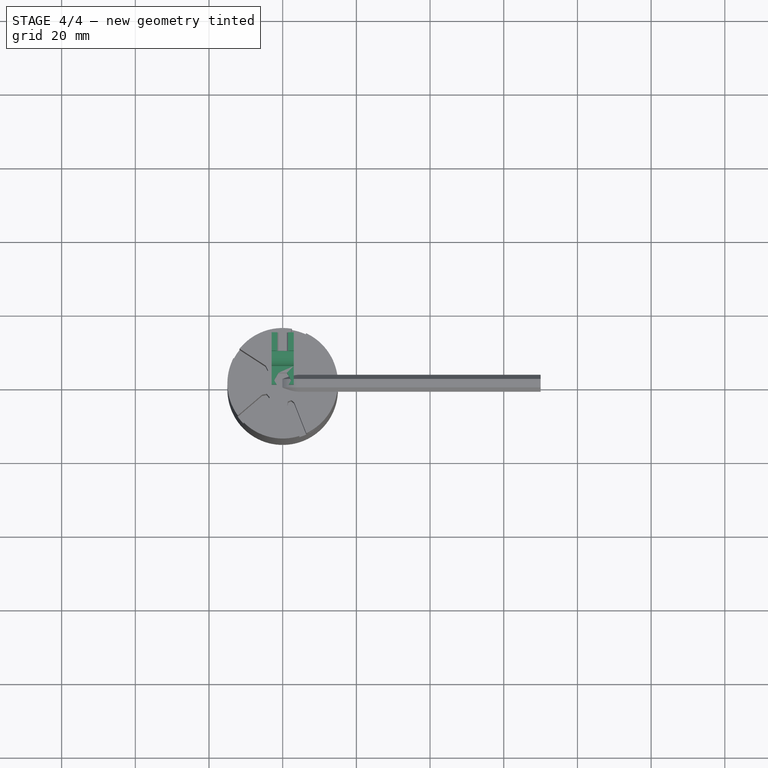
[diagram: stage 4 of 4 — top view after this stage's code; geometry added in this stage tinted green]
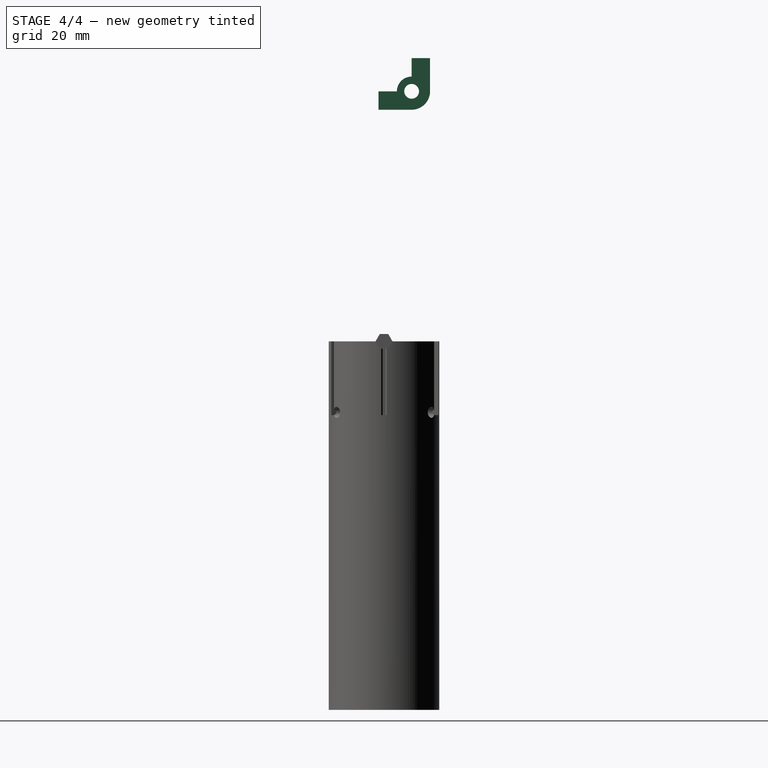
[diagram: stage 4 of 4 — right view after this stage's code; geometry added in this stage tinted green]
FEATURE [PartDesign::Body] Body001  label="4 Key"
  AllowCompound = true
  Group = -> [Sketch002,Sketch003,AdditivePipe]
  Origin = -> Origin002
  Placement = pos=(0,-5.128,150) rot=(1,0,0;3.14159rad)
  Tip = -> AdditivePipe
FEATURE [App::Point] Origin005  label="Origine004"
  Role = Origin
FEATURE [PartDesign::SubShapeBinder] Binder
  BindCopyOnChange = 0
  BindMode = 0
  ClaimChildren = false
  Context = -> Body002 [Binder.]
  Fuse = false
  MakeFace = true
  OffsetFill = false
  OffsetIntersection = false
  OffsetJoinType = 0
  OffsetOpenResult = false
  PartialLoad = false
  Refine = true
  Relative = true
  Support = -> [Body001]
  _Version = 2
FEATURE [Sketcher::SketchObject] Sketch004
  ArcFitTolerance = 1e-06
  AttachmentSupport = -> [Origin004]
  ExternalGeometry = -> [Binder]
  ExternalTypes = [0,0]
  FullyConstrained = true
  MakeInternals = false
  MapMode = 5
  Placement = pos=(0,0,0) rot=(0.57735,0.57735,0.57735;2.0944rad)
  sketch-geometry (12):
    g0: LineSegment [constr] StartX=0 StartY=75.37 StartZ=0 EndX=7.5 EndY=67.87 EndZ=0
    g1: Circle [constr] CenterX=7.5 CenterY=67.87 CenterZ=0 NormalX=0 NormalY=0 NormalZ=1 AngleXU=0 Radius=7.5
    g2: Circle CenterX=7.5 CenterY=67.87 CenterZ=0 NormalX=0 NormalY=0 NormalZ=1 AngleXU=0 Radius=2
    g3: ArcOfCircle CenterX=7.5 CenterY=67.87 CenterZ=0 NormalX=0 NormalY=0 NormalZ=1 AngleXU=0 Radius=5 StartAngle=4.71239 EndAngle=6.28319
    g4: LineSegment StartX=12.5 StartY=67.87 StartZ=0 EndX=12.5 EndY=76.87 EndZ=0
    g5: LineSegment StartX=12.5 StartY=76.87 StartZ=0 EndX=7.5 EndY=76.87 EndZ=0
    g6: LineSegment StartX=-1.5 StartY=62.87 StartZ=0 EndX=7.5 EndY=62.87 EndZ=0
    g7: LineSegment StartX=-1.5 StartY=67.87 StartZ=0 EndX=-1.5 EndY=62.87 EndZ=0
    g8: ArcOfCircle CenterX=7.5 CenterY=67.87 CenterZ=0 NormalX=0 NormalY=0 NormalZ=1 AngleXU=0 Radius=4 StartAngle=1.5708 EndAngle=3.14159
    g9: LineSegment StartX=7.5 StartY=71.87 StartZ=0 EndX=7.5 EndY=76.87 EndZ=0
    g10: LineSegment StartX=-1.5 StartY=67.87 StartZ=0 EndX=3.5 EndY=67.87 EndZ=0
    g11: ArcOfCircle [constr] CenterX=7.5 CenterY=67.87 CenterZ=0 NormalX=0 NormalY=0 NormalZ=1 AngleXU=0 Radius=9 StartAngle=1.5708 EndAngle=3.14159
  constraints (33):
    c: Angle(g-2,g0) = 0.785398
    c: Coincident(g1,g0)
    c: Tangent(g1,g-2)
    c: Diameter(g1) = 15
    c: Diameter(g2) = 4
    c: Coincident(g2,g0)
    c: Coincident(g3,g0)
    c: Tangent(g3,g4) = -1.5708
    c: Coincident(g4,g5)
    c: Horizontal(g5)
    c: Coincident(g6,g3)
    c: Vertical(g4)
    c: Horizontal(g6)
    c: Distance(g4,g-3) = 1.5
    c: Vertical(g3,g0)
    c: Radius(g3) = 5
    c: Coincident(g9,g5)
    c: Vertical(g9)
    c: Coincident(g8,g9)
    c: Coincident(g8,g0)
    c: Coincident(g7,g6)
    c: Coincident(g10,g8)
    c: Horizontal(g10)
    c: Radius(g8) = 4
    c: Coincident(g7,g10)
    c: Vertical(g7)
    c: Equal(g7,g5)
    c: Tangent(g1,g-3)
    c: Coincident(g11,g0)
    c: Coincident(g11,g5)
    c: Coincident(g11,g7)
    c: Horizontal(g8,g0)
    c: PointOnObject(g0,g-2)
FEATURE [PartDesign::Pad] Pad001
  Direction = (1,0,0)
  Length = 6
  Length2 = 10
  Profile = -> Sketch004
  ReferenceAxis = -> Sketch004 [N_Axis]
  Refine = true
  SideType = 2
  Suppressed = false
  Type = 0
  Type2 = 0
FEATURE [PartDesign::SubtractivePipe] SubtractivePipe
  AuxiliaryCurvilinear = true
  AuxiliarySpineTangent = false
  BaseFeature = -> Pad001
  Binormal = (0,0,0)
  Mode = 0
  Profile = -> Binder [Face15]
  Refine = true
  Spine = -> Binder [Edge39,Edge22,Edge10]
  SpineTangent = false
  Suppressed = false
  Transformation = 0
  Transition = 0
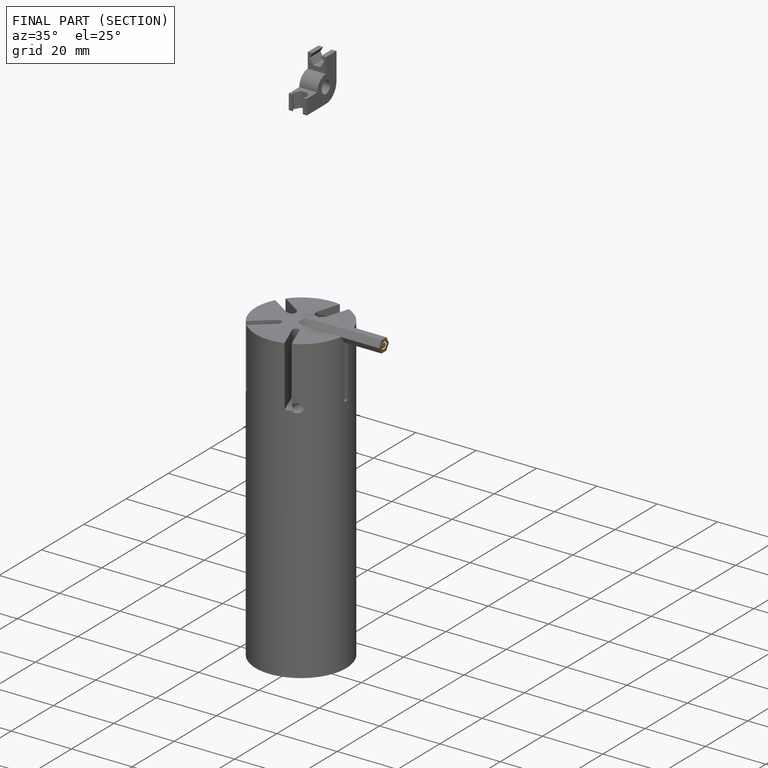
[diagram: finished part — half-section view (interior)]
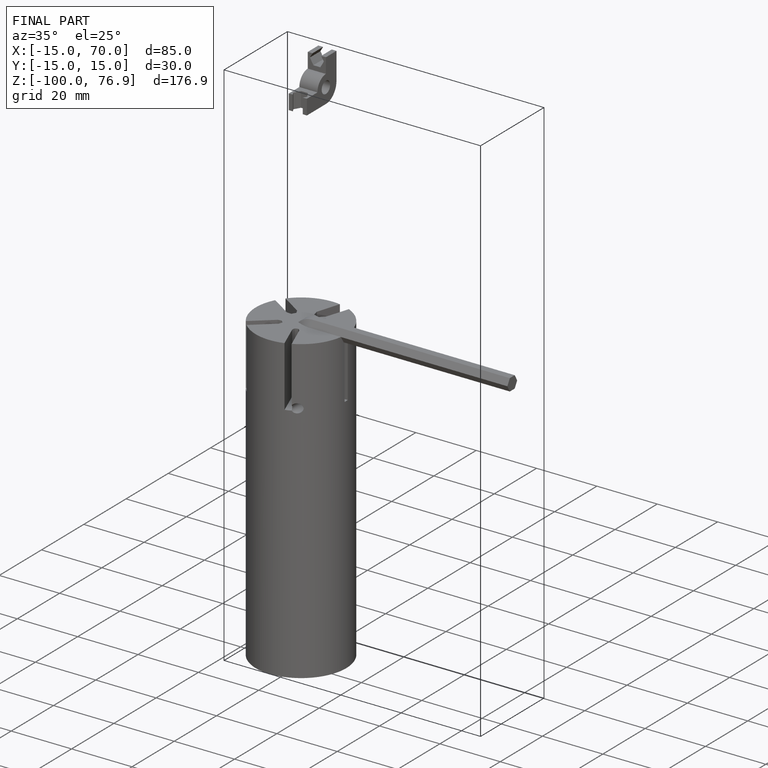
[diagram: finished part — iso view with bounding-box wireframe]
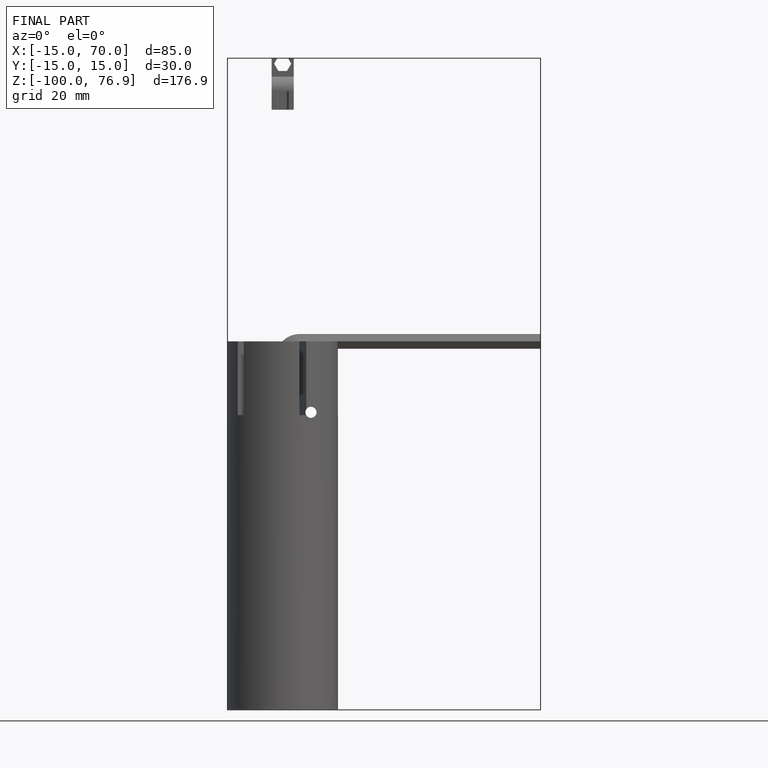
[diagram: finished part — front view with bounding-box wireframe]
